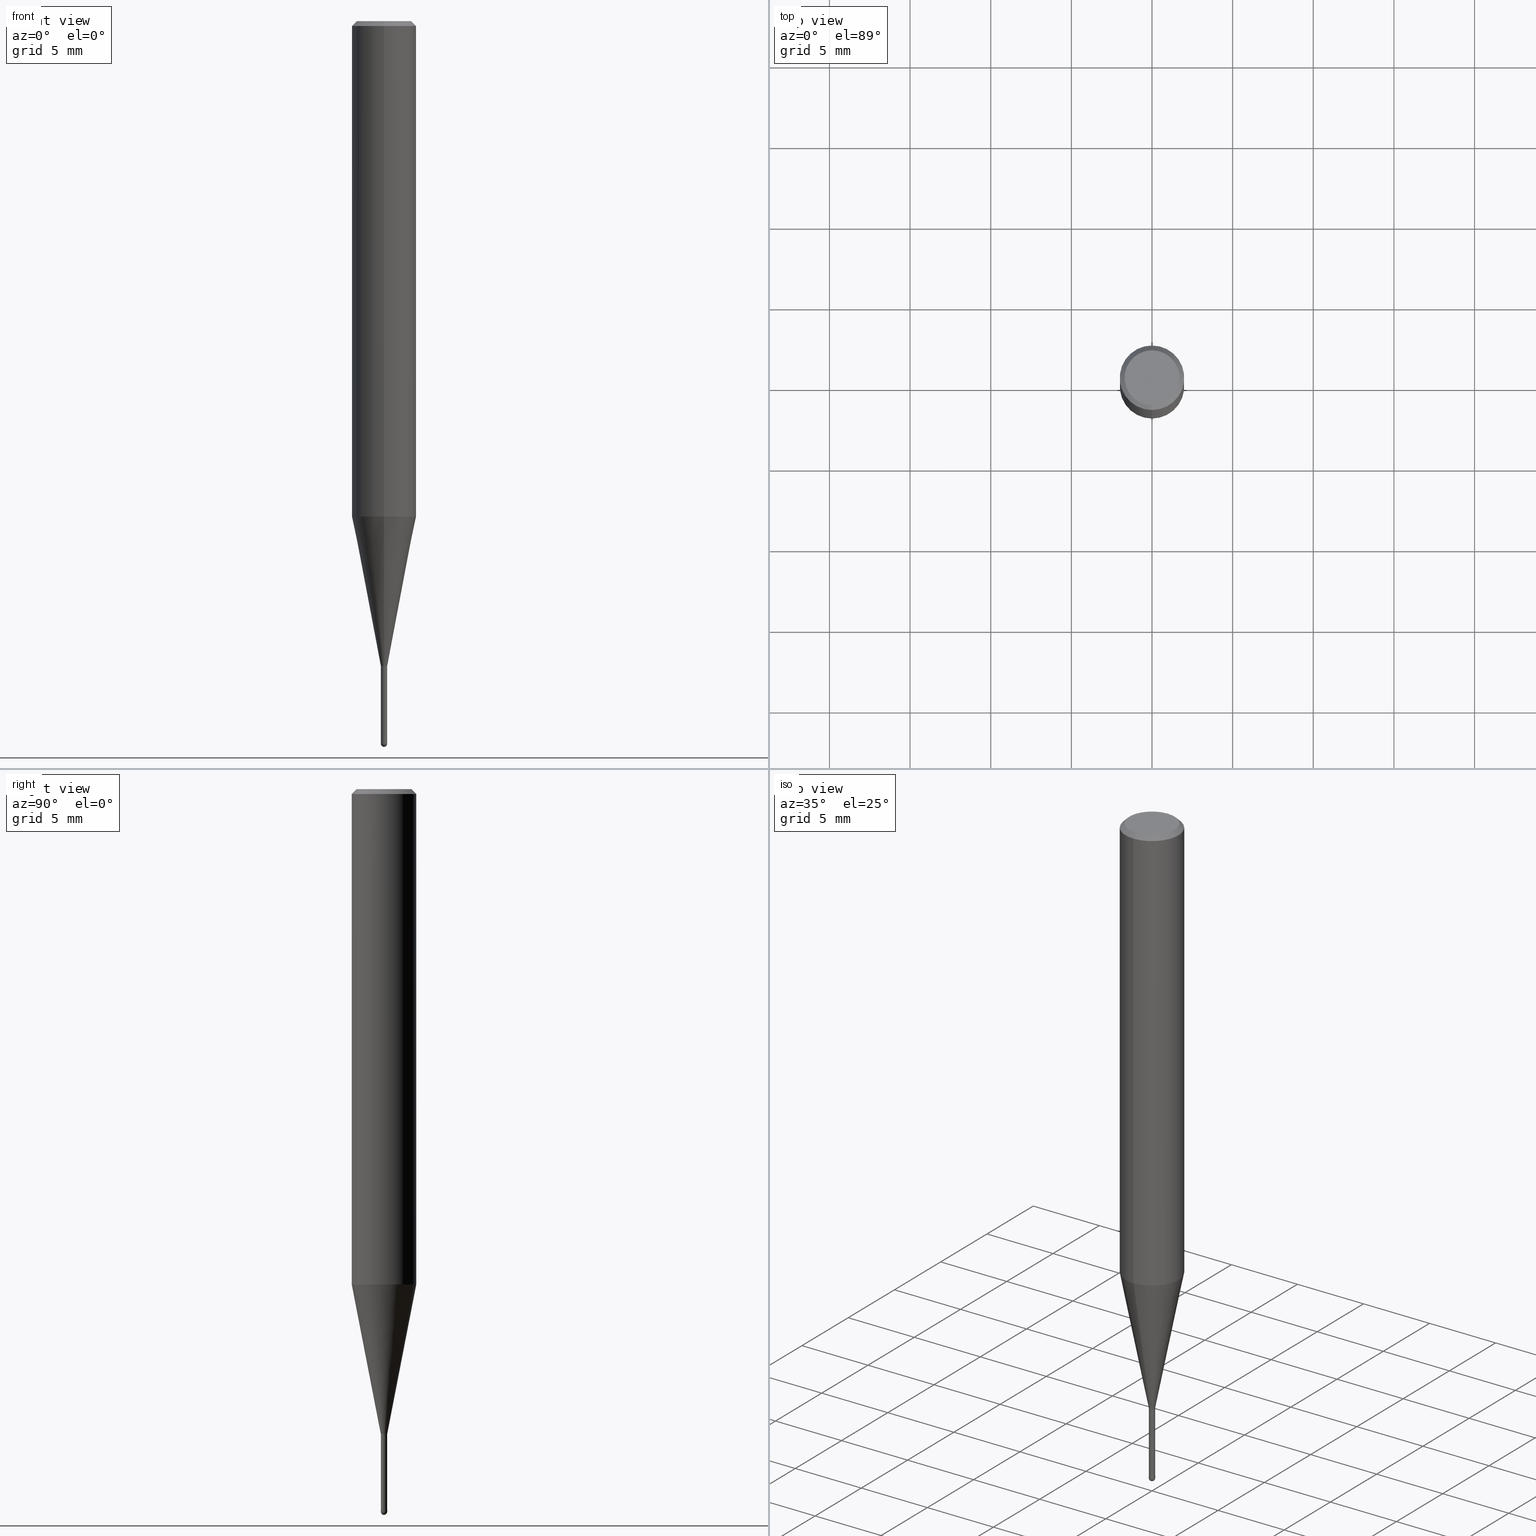
[diagram: canonical four-view strip — front | top / right | iso, engineering-drawing reading convention]
A machine part, canonical four-view strip (front | top / right | iso — engineering-drawing reading convention). The complete STEP part file that produces these views, byte-faithful:
ISO-10303-21;
HEADER;
FILE_DESCRIPTION(('no description'),'unknown implementation level');
FILE_NAME('CSELB2004-050-Huellk.stp','  ',('CIMSOURCE GmbH'),('CADClick - KiM GmbH - www.kimweb.de'),'unknown preprocess','ACIS','unknown authorization');
FILE_SCHEMA(('automotive_design'));
ENDSEC;
DATA;
#1=MECHANICAL_DESIGN_GEOMETRIC_PRESENTATION_REPRESENTATION(' ',(#14,#15,#16,#17,#18,#19,#20,#21,#22,#23,#24,#25,#26,#27,#28,#29,#30,#31,#32,#33,#34,#35,#36,#37,#38,#39,#40,#41,#42,#43,#44,#45,#46,#47,#48,#49,#50,#51,#52,#53,#54,#55,#56,#57,#58,#59,#60,#61,#62,#63,#64,#65,#66,#67,#68,#69,#70,#71,#72,#73,#74),#10);
#2=PRODUCT_DEFINITION_CONTEXT('',#75,'design');
#3=APPLICATION_PROTOCOL_DEFINITION('INTERNATIONAL STANDARD','automotive_design',1994,#75);
#4=PRODUCT_CATEGORY_RELATIONSHIP('NONE','NONE',#76,#77);
#5=SHAPE_DEFINITION_REPRESENTATION(#78,#79);
#6=PRODUCT_DEFINITION_CONTEXT('',#80,'design');
#7=APPLICATION_PROTOCOL_DEFINITION('INTERNATIONAL STANDARD','automotive_design',1994,#80);
#8=PRODUCT_CATEGORY_RELATIONSHIP('NONE','NONE',#81,#82);
#9=SHAPE_DEFINITION_REPRESENTATION(#83,#84);
#10= (GEOMETRIC_REPRESENTATION_CONTEXT(3)GLOBAL_UNCERTAINTY_ASSIGNED_CONTEXT((#87))GLOBAL_UNIT_ASSIGNED_CONTEXT((#89,#90,#91))REPRESENTATION_CONTEXT('NONE','WORKSPACE'));
#14=STYLED_ITEM('',(#93),#94);
#15=STYLED_ITEM('',(#95),#96);
#16=STYLED_ITEM('',(#97),#98);
#17=STYLED_ITEM('',(#99),#100);
#18=STYLED_ITEM('',(#101),#102);
#19=STYLED_ITEM('',(#103),#104);
#20=STYLED_ITEM('',(#105),#106);
#21=STYLED_ITEM('',(#107),#108);
#22=STYLED_ITEM('',(#109),#110);
#23=STYLED_ITEM('',(#111),#112);
#24=STYLED_ITEM('',(#113),#114);
#25=STYLED_ITEM('',(#115),#116);
#26=STYLED_ITEM('',(#117),#118);
#27=STYLED_ITEM('',(#119),#120);
#28=STYLED_ITEM('',(#121),#122);
#29=STYLED_ITEM('',(#123),#124);
#30=STYLED_ITEM('',(#125),#126);
#31=STYLED_ITEM('',(#127),#128);
#32=STYLED_ITEM('',(#129),#130);
#33=STYLED_ITEM('',(#131),#132);
#34=STYLED_ITEM('',(#133),#134);
#35=STYLED_ITEM('',(#135),#136);
#36=STYLED_ITEM('',(#137),#138);
#37=STYLED_ITEM('',(#139),#140);
#38=STYLED_ITEM('',(#141),#142);
#39=STYLED_ITEM('',(#143),#144);
#40=STYLED_ITEM('',(#145),#146);
#41=STYLED_ITEM('',(#147),#148);
#42=STYLED_ITEM('',(#149),#150);
#43=STYLED_ITEM('',(#151),#152);
#44=STYLED_ITEM('',(#153),#154);
#45=STYLED_ITEM('',(#155),#156);
#46=STYLED_ITEM('',(#157),#158);
#47=STYLED_ITEM('',(#159),#160);
#48=STYLED_ITEM('',(#161),#162);
#49=STYLED_ITEM('',(#163),#164);
#50=STYLED_ITEM('',(#165),#166);
#51=STYLED_ITEM('',(#167),#168);
#52=STYLED_ITEM('',(#169),#170);
#53=STYLED_ITEM('',(#171),#172);
#54=STYLED_ITEM('',(#173),#174);
#55=STYLED_ITEM('',(#175),#176);
#56=STYLED_ITEM('',(#177),#178);
#57=STYLED_ITEM('',(#179),#180);
#58=STYLED_ITEM('',(#181),#182);
#59=STYLED_ITEM('',(#183),#184);
#60=STYLED_ITEM('',(#185),#186);
#61=STYLED_ITEM('',(#187),#188);
#62=STYLED_ITEM('',(#189),#190);
#63=STYLED_ITEM('',(#191),#192);
#64=STYLED_ITEM('',(#193),#194);
#65=STYLED_ITEM('',(#195),#196);
#66=STYLED_ITEM('',(#197),#198);
#67=STYLED_ITEM('',(#199),#200);
#68=STYLED_ITEM('',(#201),#202);
#69=STYLED_ITEM('',(#203),#204);
#70=STYLED_ITEM('',(#205),#206);
#71=STYLED_ITEM('',(#207),#208);
#72=STYLED_ITEM('',(#209),#210);
#73=STYLED_ITEM('',(#211),#212);
#74=STYLED_ITEM('',(#213),#214);
#75=APPLICATION_CONTEXT(' ');
#76=PRODUCT_CATEGORY('part','NONE');
#77=PRODUCT_RELATED_PRODUCT_CATEGORY('detail',' ',(#215));
#78=PRODUCT_DEFINITION_SHAPE('NONE','NONE',#216);
#79=ADVANCED_BREP_SHAPE_REPRESENTATION('1',(#134,#217),#10);
#80=APPLICATION_CONTEXT(' ');
#81=PRODUCT_CATEGORY('part','NONE');
#82=PRODUCT_RELATED_PRODUCT_CATEGORY('detail',' ',(#218));
#83=PRODUCT_DEFINITION_SHAPE('NONE','NONE',#219);
#84=ADVANCED_BREP_SHAPE_REPRESENTATION('2',(#158,#220),#10);
#87=UNCERTAINTY_MEASURE_WITH_UNIT(LENGTH_MEASURE(1.0E-006),#89,'','');
#89= (CONVERSION_BASED_UNIT('MILLIMETRE',#223)LENGTH_UNIT()NAMED_UNIT(#226));
#90= (NAMED_UNIT(#228)PLANE_ANGLE_UNIT()SI_UNIT($,.RADIAN.));
#91= (NAMED_UNIT(#228)SOLID_ANGLE_UNIT()SI_UNIT($,.STERADIAN.));
#93=PRESENTATION_STYLE_ASSIGNMENT((#234));
#94=EDGE_CURVE('',#200,#102,#235,.T.);
#95=PRESENTATION_STYLE_ASSIGNMENT((#236));
#96=VERTEX_POINT('',#237);
#97=PRESENTATION_STYLE_ASSIGNMENT((#238));
#98=EDGE_CURVE('',#164,#138,#239,.T.);
#99=PRESENTATION_STYLE_ASSIGNMENT((#240));
#100=VERTEX_POINT('',#241);
#101=PRESENTATION_STYLE_ASSIGNMENT((#242));
#102=VERTEX_POINT('',#243);
#103=PRESENTATION_STYLE_ASSIGNMENT((#244));
#104=VERTEX_POINT('',#245);
#105=PRESENTATION_STYLE_ASSIGNMENT((#246));
#106=VERTEX_POINT('',#247);
#107=PRESENTATION_STYLE_ASSIGNMENT((#248));
#108=ADVANCED_FACE('',(#249),#250,.T.);
#109=PRESENTATION_STYLE_ASSIGNMENT((#251));
#110=VERTEX_POINT('',#252);
#111=PRESENTATION_STYLE_ASSIGNMENT((#253));
#112=VERTEX_POINT('',#254);
#113=PRESENTATION_STYLE_ASSIGNMENT((#255));
#114=EDGE_CURVE('',#138,#164,#256,.T.);
#115=PRESENTATION_STYLE_ASSIGNMENT((#257));
#116=EDGE_CURVE('',#182,#96,#258,.T.);
#117=PRESENTATION_STYLE_ASSIGNMENT((#259));
#118=ADVANCED_FACE('',(#260),#261,.T.);
#119=PRESENTATION_STYLE_ASSIGNMENT((#262));
#120=ADVANCED_FACE('',(#263),#264,.T.);
#121=PRESENTATION_STYLE_ASSIGNMENT((#265));
#122=EDGE_CURVE('',#96,#138,#266,.T.);
#123=PRESENTATION_STYLE_ASSIGNMENT((#267));
#124=ADVANCED_FACE('',(#268),#269,.T.);
#125=PRESENTATION_STYLE_ASSIGNMENT((#270));
#126=EDGE_CURVE('',#162,#110,#271,.T.);
#127=PRESENTATION_STYLE_ASSIGNMENT((#272));
#128=EDGE_CURVE('',#200,#174,#273,.T.);
#129=PRESENTATION_STYLE_ASSIGNMENT((#274));
#130=EDGE_CURVE('',#152,#174,#275,.T.);
#131=PRESENTATION_STYLE_ASSIGNMENT((#276));
#132=EDGE_CURVE('',#110,#104,#277,.T.);
#133=PRESENTATION_STYLE_ASSIGNMENT((#278));
#134=MANIFOLD_SOLID_BREP('1',#279);
#135=PRESENTATION_STYLE_ASSIGNMENT((#280));
#136=EDGE_CURVE('',#164,#182,#281,.T.);
#137=PRESENTATION_STYLE_ASSIGNMENT((#282));
#138=VERTEX_POINT('',#283);
#139=PRESENTATION_STYLE_ASSIGNMENT((#284));
#140=ADVANCED_FACE('',(#285),#286,.T.);
#141=PRESENTATION_STYLE_ASSIGNMENT((#287));
#142=ADVANCED_FACE('',(#288),#289,.T.);
#143=PRESENTATION_STYLE_ASSIGNMENT((#290));
#144=EDGE_CURVE('',#106,#100,#291,.T.);
#145=PRESENTATION_STYLE_ASSIGNMENT((#292));
#146=ADVANCED_FACE('',(#293),#294,.T.);
#147=PRESENTATION_STYLE_ASSIGNMENT((#295));
#148=EDGE_CURVE('',#112,#104,#296,.T.);
#149=PRESENTATION_STYLE_ASSIGNMENT((#297));
#150=EDGE_CURVE('',#164,#138,#298,.T.);
#151=PRESENTATION_STYLE_ASSIGNMENT((#299));
#152=VERTEX_POINT('',#300);
#153=PRESENTATION_STYLE_ASSIGNMENT((#301));
#154=EDGE_CURVE('',#174,#188,#302,.T.);
#155=PRESENTATION_STYLE_ASSIGNMENT((#303));
#156=EDGE_CURVE('',#106,#110,#304,.T.);
#157=PRESENTATION_STYLE_ASSIGNMENT((#305));
#158=MANIFOLD_SOLID_BREP('2',#306);
#159=PRESENTATION_STYLE_ASSIGNMENT((#307));
#160=EDGE_CURVE('',#112,#162,#308,.T.);
#161=PRESENTATION_STYLE_ASSIGNMENT((#309));
#162=VERTEX_POINT('',#310);
#163=PRESENTATION_STYLE_ASSIGNMENT((#311));
#164=VERTEX_POINT('',#312);
#165=PRESENTATION_STYLE_ASSIGNMENT((#313));
#166=ADVANCED_FACE('',(#314),#315,.T.);
#167=PRESENTATION_STYLE_ASSIGNMENT((#316));
#168=EDGE_CURVE('',#174,#200,#317,.T.);
#169=PRESENTATION_STYLE_ASSIGNMENT((#318));
#170=EDGE_CURVE('',#194,#200,#319,.T.);
#171=PRESENTATION_STYLE_ASSIGNMENT((#320));
#172=ADVANCED_FACE('',(#321),#322,.T.);
#173=PRESENTATION_STYLE_ASSIGNMENT((#323));
#174=VERTEX_POINT('',#324);
#175=PRESENTATION_STYLE_ASSIGNMENT((#325));
#176=EDGE_CURVE('',#162,#100,#326,.T.);
#177=PRESENTATION_STYLE_ASSIGNMENT((#327));
#178=ADVANCED_FACE('',(#328),#329,.T.);
#179=PRESENTATION_STYLE_ASSIGNMENT((#330));
#180=ADVANCED_FACE('',(#331),#332,.T.);
#181=PRESENTATION_STYLE_ASSIGNMENT((#333));
#182=VERTEX_POINT('',#334);
#183=PRESENTATION_STYLE_ASSIGNMENT((#335));
#184=ADVANCED_FACE('',(#336),#337,.T.);
#185=PRESENTATION_STYLE_ASSIGNMENT((#338));
#186=EDGE_CURVE('',#102,#152,#339,.T.);
#187=PRESENTATION_STYLE_ASSIGNMENT((#340));
#188=VERTEX_POINT('',#341);
#189=PRESENTATION_STYLE_ASSIGNMENT((#342));
#190=EDGE_CURVE('',#100,#106,#343,.T.);
#191=PRESENTATION_STYLE_ASSIGNMENT((#344));
#192=ADVANCED_FACE('',(#345),#346,.T.);
#193=PRESENTATION_STYLE_ASSIGNMENT((#347));
#194=VERTEX_POINT('',#348);
#195=PRESENTATION_STYLE_ASSIGNMENT((#349));
#196=EDGE_CURVE('',#104,#112,#350,.T.);
#197=PRESENTATION_STYLE_ASSIGNMENT((#351));
#198=ADVANCED_FACE('',(#352),#353,.T.);
#199=PRESENTATION_STYLE_ASSIGNMENT((#354));
#200=VERTEX_POINT('',#355);
#201=PRESENTATION_STYLE_ASSIGNMENT((#356));
#202=EDGE_CURVE('',#152,#102,#357,.T.);
#203=PRESENTATION_STYLE_ASSIGNMENT((#358));
#204=ADVANCED_FACE('',(#359,#360),#361,.T.);
#205=PRESENTATION_STYLE_ASSIGNMENT((#362));
#206=EDGE_CURVE('',#110,#162,#363,.T.);
#207=PRESENTATION_STYLE_ASSIGNMENT((#364));
#208=EDGE_CURVE('',#194,#188,#365,.T.);
#209=PRESENTATION_STYLE_ASSIGNMENT((#366));
#210=EDGE_CURVE('',#96,#182,#367,.T.);
#211=PRESENTATION_STYLE_ASSIGNMENT((#368));
#212=EDGE_CURVE('',#188,#194,#369,.T.);
#213=PRESENTATION_STYLE_ASSIGNMENT((#370));
#214=ADVANCED_FACE('',(#371),#372,.T.);
#215=PRODUCT('1','1','PART-1-DESC',(#373));
#216=PRODUCT_DEFINITION('NONE','NONE',#374,#2);
#217=AXIS2_PLACEMENT_3D('',#375,#376,#377);
#218=PRODUCT('2','2','PART-2-DESC',(#378));
#219=PRODUCT_DEFINITION('NONE','NONE',#379,#6);
#220=AXIS2_PLACEMENT_3D('',#380,#381,#382);
#223=LENGTH_MEASURE_WITH_UNIT(LENGTH_MEASURE(1.0),#383);
#226=DIMENSIONAL_EXPONENTS(1.0,0.0,0.0,0.0,0.0,0.0,0.0);
#228=DIMENSIONAL_EXPONENTS(0.0,0.0,0.0,0.0,0.0,0.0,0.0);
#234=CURVE_STYLE('',#384,POSITIVE_LENGTH_MEASURE(1.0E-006),#385);
#235=LINE('',#386,#387);
#236=POINT_STYLE(' ',#388,POSITIVE_LENGTH_MEASURE(1.0E-006),#389);
#237=CARTESIAN_POINT('',(0.0,0.1999,-44.68));
#238=CURVE_STYLE('',#390,POSITIVE_LENGTH_MEASURE(1.0E-006),#391);
#239=CIRCLE('',#392,0.2);
#240=POINT_STYLE(' ',#393,POSITIVE_LENGTH_MEASURE(1.0E-006),#394);
#241=CARTESIAN_POINT('',(2.08183080149804E-016,-1.7,0.0));
#242=POINT_STYLE(' ',#395,POSITIVE_LENGTH_MEASURE(1.0E-006),#396);
#243=CARTESIAN_POINT('',(0.0,0.19495,-44.68));
#244=POINT_STYLE(' ',#397,POSITIVE_LENGTH_MEASURE(1.0E-006),#398);
#245=CARTESIAN_POINT('',(0.0,2.0,-30.714));
#246=POINT_STYLE(' ',#399,POSITIVE_LENGTH_MEASURE(1.0E-006),#400);
#247=CARTESIAN_POINT('',(0.0,1.7,0.0));
#248=SURFACE_STYLE_USAGE(.BOTH.,#401);
#249=FACE_OUTER_BOUND('',#402,.T.);
#250=CONICAL_SURFACE('',#403,0.19995,0.000833333140432319);
#251=POINT_STYLE(' ',#404,POSITIVE_LENGTH_MEASURE(1.0E-006),#405);
#252=CARTESIAN_POINT('',(0.0,2.0,-0.300000000000001));
#253=POINT_STYLE(' ',#406,POSITIVE_LENGTH_MEASURE(1.0E-006),#407);
#254=CARTESIAN_POINT('',(2.44921270764475E-016,-2.0,-30.714));
#255=CURVE_STYLE('',#408,POSITIVE_LENGTH_MEASURE(1.0E-006),#409);
#256=CIRCLE('',#410,0.2);
#257=CURVE_STYLE('',#411,POSITIVE_LENGTH_MEASURE(1.0E-006),#412);
#258=CIRCLE('',#413,0.1999);
#259=SURFACE_STYLE_USAGE(.BOTH.,#414);
#260=FACE_OUTER_BOUND('',#415,.T.);
#261=CYLINDRICAL_SURFACE('',#416,2.0);
#262=SURFACE_STYLE_USAGE(.BOTH.,#417);
#263=FACE_OUTER_BOUND('',#418,.T.);
#264=SPHERICAL_SURFACE('',#419,0.2);
#265=CURVE_STYLE('',#420,POSITIVE_LENGTH_MEASURE(1.0E-006),#421);
#266=LINE('',#422,#423);
#267=SURFACE_STYLE_USAGE(.BOTH.,#424);
#268=FACE_OUTER_BOUND('',#425,.T.);
#269=CONICAL_SURFACE('',#426,0.19995,0.000833333140432319);
#270=CURVE_STYLE('',#427,POSITIVE_LENGTH_MEASURE(1.0E-006),#428);
#271=CIRCLE('',#429,2.0);
#272=CURVE_STYLE('',#430,POSITIVE_LENGTH_MEASURE(1.0E-006),#431);
#273=CIRCLE('',#432,0.19495);
#274=CURVE_STYLE('',#433,POSITIVE_LENGTH_MEASURE(1.0E-006),#434);
#275=LINE('',#435,#436);
#276=CURVE_STYLE('',#437,POSITIVE_LENGTH_MEASURE(1.0E-006),#438);
#277=LINE('',#439,#440);
#278=SURFACE_STYLE_USAGE(.BOTH.,#441);
#279=CLOSED_SHELL('',(#192,#178,#118,#142,#204,#172,#180,#146,#184,#166,#140));
#280=CURVE_STYLE('',#442,POSITIVE_LENGTH_MEASURE(1.0E-006),#443);
#281=LINE('',#444,#445);
#282=POINT_STYLE(' ',#446,POSITIVE_LENGTH_MEASURE(1.0E-006),#447);
#283=CARTESIAN_POINT('',(0.0,0.2,-44.8));
#284=SURFACE_STYLE_USAGE(.BOTH.,#448);
#285=FACE_OUTER_BOUND('',#449,.T.);
#286=PLANE('',#450);
#287=SURFACE_STYLE_USAGE(.BOTH.,#451);
#288=FACE_OUTER_BOUND('',#452,.T.);
#289=CONICAL_SURFACE('',#453,1.85,0.785398163397447);
#290=CURVE_STYLE('',#454,POSITIVE_LENGTH_MEASURE(1.0E-006),#455);
#291=CIRCLE('',#456,1.7);
#292=SURFACE_STYLE_USAGE(.BOTH.,#457);
#293=FACE_OUTER_BOUND('',#458,.T.);
#294=CYLINDRICAL_SURFACE('',#459,2.0);
#295=CURVE_STYLE('',#460,POSITIVE_LENGTH_MEASURE(1.0E-006),#461);
#296=CIRCLE('',#462,2.0);
#297=CURVE_STYLE('',#463,POSITIVE_LENGTH_MEASURE(1.0E-006),#464);
#298=CIRCLE('',#465,0.2);
#299=POINT_STYLE(' ',#466,POSITIVE_LENGTH_MEASURE(1.0E-006),#467);
#300=CARTESIAN_POINT('',(2.38737008677672E-017,-0.19495,-44.68));
#301=CURVE_STYLE('',#468,POSITIVE_LENGTH_MEASURE(1.0E-006),#469);
#302=LINE('',#470,#471);
#303=CURVE_STYLE('',#472,POSITIVE_LENGTH_MEASURE(1.0E-006),#473);
#304=LINE('',#474,#475);
#305=SURFACE_STYLE_USAGE(.BOTH.,#476);
#306=CLOSED_SHELL('',(#120,#108,#214,#124,#198));
#307=CURVE_STYLE('',#477,POSITIVE_LENGTH_MEASURE(1.0E-006),#478);
#308=LINE('',#479,#480);
#309=POINT_STYLE(' ',#481,POSITIVE_LENGTH_MEASURE(1.0E-006),#482);
#310=CARTESIAN_POINT('',(2.44921270764475E-016,-2.0,-0.300000000000001));
#311=POINT_STYLE(' ',#483,POSITIVE_LENGTH_MEASURE(1.0E-006),#484);
#312=CARTESIAN_POINT('',(2.44921270764475E-017,-0.2,-44.8));
#313=SURFACE_STYLE_USAGE(.BOTH.,#485);
#314=FACE_OUTER_BOUND('',#486,.T.);
#315=CYLINDRICAL_SURFACE('',#487,0.19495);
#316=CURVE_STYLE('',#488,POSITIVE_LENGTH_MEASURE(1.0E-006),#489);
#317=CIRCLE('',#490,0.19495);
#318=CURVE_STYLE('',#491,POSITIVE_LENGTH_MEASURE(1.0E-006),#492);
#319=LINE('',#493,#494);
#320=SURFACE_STYLE_USAGE(.BOTH.,#495);
#321=FACE_OUTER_BOUND('',#496,.T.);
#322=PLANE('',#497);
#323=POINT_STYLE(' ',#498,POSITIVE_LENGTH_MEASURE(1.0E-006),#499);
#324=CARTESIAN_POINT('',(2.38737008677672E-017,-0.19495,-40.0));
#325=CURVE_STYLE('',#500,POSITIVE_LENGTH_MEASURE(1.0E-006),#501);
#326=LINE('',#502,#503);
#327=SURFACE_STYLE_USAGE(.BOTH.,#504);
#328=FACE_OUTER_BOUND('',#505,.T.);
#329=CONICAL_SURFACE('',#506,1.09745,0.191984604054908);
#330=SURFACE_STYLE_USAGE(.BOTH.,#507);
#331=FACE_OUTER_BOUND('',#508,.T.);
#332=CONICAL_SURFACE('',#509,1.85,0.785398163397447);
#333=POINT_STYLE(' ',#510,POSITIVE_LENGTH_MEASURE(1.0E-006),#511);
#334=CARTESIAN_POINT('',(2.44798810129093E-017,-0.1999,-44.68));
#335=SURFACE_STYLE_USAGE(.BOTH.,#512);
#336=FACE_OUTER_BOUND('',#513,.T.);
#337=CONICAL_SURFACE('',#514,1.09745,0.191984604054908);
#338=CURVE_STYLE('',#515,POSITIVE_LENGTH_MEASURE(1.0E-006),#516);
#339=CIRCLE('',#517,0.19495);
#340=POINT_STYLE(' ',#518,POSITIVE_LENGTH_MEASURE(1.0E-006),#519);
#341=CARTESIAN_POINT('',(2.44915147732706E-016,-1.99995,-30.714));
#342=CURVE_STYLE('',#520,POSITIVE_LENGTH_MEASURE(1.0E-006),#521);
#343=CIRCLE('',#522,1.7);
#344=SURFACE_STYLE_USAGE(.BOTH.,#523);
#345=FACE_OUTER_BOUND('',#524,.T.);
#346=CYLINDRICAL_SURFACE('',#525,0.19495);
#347=POINT_STYLE(' ',#526,POSITIVE_LENGTH_MEASURE(1.0E-006),#527);
#348=CARTESIAN_POINT('',(0.0,1.99995,-30.714));
#349=CURVE_STYLE('',#528,POSITIVE_LENGTH_MEASURE(1.0E-006),#529);
#350=CIRCLE('',#530,2.0);
#351=SURFACE_STYLE_USAGE(.BOTH.,#531);
#352=FACE_OUTER_BOUND('',#532,.T.);
#353=SPHERICAL_SURFACE('',#533,0.2);
#354=POINT_STYLE(' ',#534,POSITIVE_LENGTH_MEASURE(1.0E-006),#535);
#355=CARTESIAN_POINT('',(0.0,0.19495,-40.0));
#356=CURVE_STYLE('',#536,POSITIVE_LENGTH_MEASURE(1.0E-006),#537);
#357=CIRCLE('',#538,0.19495);
#358=SURFACE_STYLE_USAGE(.BOTH.,#539);
#359=FACE_OUTER_BOUND('',#540,.T.);
#360=FACE_BOUND('',#541,.T.);
#361=PLANE('',#542);
#362=CURVE_STYLE('',#543,POSITIVE_LENGTH_MEASURE(1.0E-006),#544);
#363=CIRCLE('',#545,2.0);
#364=CURVE_STYLE('',#546,POSITIVE_LENGTH_MEASURE(1.0E-006),#547);
#365=CIRCLE('',#548,1.99995);
#366=CURVE_STYLE('',#549,POSITIVE_LENGTH_MEASURE(1.0E-006),#550);
#367=CIRCLE('',#551,0.1999);
#368=CURVE_STYLE('',#552,POSITIVE_LENGTH_MEASURE(1.0E-006),#553);
#369=CIRCLE('',#554,1.99995);
#370=SURFACE_STYLE_USAGE(.BOTH.,#555);
#371=FACE_OUTER_BOUND('',#556,.T.);
#372=PLANE('',#557);
#373=PRODUCT_CONTEXT('',#75,'mechanical');
#374=PRODUCT_DEFINITION_FORMATION_WITH_SPECIFIED_SOURCE(' ','NONE',#215,.NOT_KNOWN.);
#375=CARTESIAN_POINT('',(0.0,0.0,0.0));
#376=DIRECTION('',(0.0,0.0,1.0));
#377=DIRECTION('',(1.0,0.0,0.0));
#378=PRODUCT_CONTEXT('',#80,'mechanical');
#379=PRODUCT_DEFINITION_FORMATION_WITH_SPECIFIED_SOURCE(' ','NONE',#218,.NOT_KNOWN.);
#380=CARTESIAN_POINT('',(0.0,0.0,0.0));
#381=DIRECTION('',(0.0,0.0,1.0));
#382=DIRECTION('',(1.0,0.0,0.0));
#383= (NAMED_UNIT(#226)LENGTH_UNIT()SI_UNIT(.MILLI.,.METRE.));
#384=DRAUGHTING_PRE_DEFINED_CURVE_FONT('continuous');
#385=COLOUR_RGB('',0.498039215803146,0.498039215803146,0.498039215803146);
#386=CARTESIAN_POINT('',(-2.38737008677672E-017,0.19495,-42.34));
#387=VECTOR('',#559,1.0);
#388=PRE_DEFINED_MARKER('');
#389=COLOUR_RGB('',0.800000011920929,0.800000011920929,0.800000011920929);
#390=DRAUGHTING_PRE_DEFINED_CURVE_FONT('continuous');
#391=COLOUR_RGB('',0.800000011920929,0.800000011920929,0.800000011920929);
#392=AXIS2_PLACEMENT_3D('',#560,#561,#562);
#393=PRE_DEFINED_MARKER('');
#394=COLOUR_RGB('',0.498039215803146,0.498039215803146,0.498039215803146);
#395=PRE_DEFINED_MARKER('');
#396=COLOUR_RGB('',0.498039215803146,0.498039215803146,0.498039215803146);
#397=PRE_DEFINED_MARKER('');
#398=COLOUR_RGB('',0.498039215803146,0.498039215803146,0.498039215803146);
#399=PRE_DEFINED_MARKER('');
#400=COLOUR_RGB('',0.498039215803146,0.498039215803146,0.498039215803146);
#401=SURFACE_SIDE_STYLE('',(#563));
#402=EDGE_LOOP('',(#564,#565,#566,#567));
#403=AXIS2_PLACEMENT_3D('',#568,#569,#570);
#404=PRE_DEFINED_MARKER('');
#405=COLOUR_RGB('',0.498039215803146,0.498039215803146,0.498039215803146);
#406=PRE_DEFINED_MARKER('');
#407=COLOUR_RGB('',0.498039215803146,0.498039215803146,0.498039215803146);
#408=DRAUGHTING_PRE_DEFINED_CURVE_FONT('continuous');
#409=COLOUR_RGB('',0.800000011920929,0.800000011920929,0.800000011920929);
#410=AXIS2_PLACEMENT_3D('',#571,#572,#573);
#411=DRAUGHTING_PRE_DEFINED_CURVE_FONT('continuous');
#412=COLOUR_RGB('',0.800000011920929,0.800000011920929,0.800000011920929);
#413=AXIS2_PLACEMENT_3D('',#574,#575,#576);
#414=SURFACE_SIDE_STYLE('',(#577));
#415=EDGE_LOOP('',(#578,#579,#580,#581));
#416=AXIS2_PLACEMENT_3D('',#582,#583,#584);
#417=SURFACE_SIDE_STYLE('',(#585));
#418=EDGE_LOOP('',(#586,#587));
#419=AXIS2_PLACEMENT_3D('',#588,#589,#590);
#420=DRAUGHTING_PRE_DEFINED_CURVE_FONT('continuous');
#421=COLOUR_RGB('',0.800000011920929,0.800000011920929,0.800000011920929);
#422=CARTESIAN_POINT('',(-2.44860040446784E-017,0.19995,-44.74));
#423=VECTOR('',#591,1.0);
#424=SURFACE_SIDE_STYLE('',(#592));
#425=EDGE_LOOP('',(#593,#594,#595,#596));
#426=AXIS2_PLACEMENT_3D('',#597,#598,#599);
#427=DRAUGHTING_PRE_DEFINED_CURVE_FONT('continuous');
#428=COLOUR_RGB('',0.498039215803146,0.498039215803146,0.498039215803146);
#429=AXIS2_PLACEMENT_3D('',#600,#601,#602);
#430=DRAUGHTING_PRE_DEFINED_CURVE_FONT('continuous');
#431=COLOUR_RGB('',0.498039215803146,0.498039215803146,0.498039215803146);
#432=AXIS2_PLACEMENT_3D('',#603,#604,#605);
#433=DRAUGHTING_PRE_DEFINED_CURVE_FONT('continuous');
#434=COLOUR_RGB('',0.498039215803146,0.498039215803146,0.498039215803146);
#435=CARTESIAN_POINT('',(2.38737008677672E-017,-0.19495,-42.34));
#436=VECTOR('',#606,1.0);
#437=DRAUGHTING_PRE_DEFINED_CURVE_FONT('continuous');
#438=COLOUR_RGB('',0.498039215803146,0.498039215803146,0.498039215803146);
#439=CARTESIAN_POINT('',(-2.44921270764475E-016,2.0,-15.507));
#440=VECTOR('',#607,1.0);
#441=SURFACE_SIDE_STYLE('',(#608));
#442=DRAUGHTING_PRE_DEFINED_CURVE_FONT('continuous');
#443=COLOUR_RGB('',0.800000011920929,0.800000011920929,0.800000011920929);
#444=CARTESIAN_POINT('',(2.44860040446784E-017,-0.19995,-44.74));
#445=VECTOR('',#609,1.0);
#446=PRE_DEFINED_MARKER('');
#447=COLOUR_RGB('',0.800000011920929,0.800000011920929,0.800000011920929);
#448=SURFACE_SIDE_STYLE('',(#610));
#449=EDGE_LOOP('',(#611,#612));
#450=AXIS2_PLACEMENT_3D('',#613,#614,#615);
#451=SURFACE_SIDE_STYLE('',(#616));
#452=EDGE_LOOP('',(#617,#618,#619,#620));
#453=AXIS2_PLACEMENT_3D('',#621,#622,#623);
#454=DRAUGHTING_PRE_DEFINED_CURVE_FONT('continuous');
#455=COLOUR_RGB('',0.498039215803146,0.498039215803146,0.498039215803146);
#456=AXIS2_PLACEMENT_3D('',#624,#625,#626);
#457=SURFACE_SIDE_STYLE('',(#627));
#458=EDGE_LOOP('',(#628,#629,#630,#631));
#459=AXIS2_PLACEMENT_3D('',#632,#633,#634);
#460=DRAUGHTING_PRE_DEFINED_CURVE_FONT('continuous');
#461=COLOUR_RGB('',0.498039215803146,0.498039215803146,0.498039215803146);
#462=AXIS2_PLACEMENT_3D('',#635,#636,#637);
#463=DRAUGHTING_PRE_DEFINED_CURVE_FONT('continuous');
#464=COLOUR_RGB('',0.800000011920929,0.800000011920929,0.800000011920929);
#465=AXIS2_PLACEMENT_3D('',#638,#639,#640);
#466=PRE_DEFINED_MARKER('');
#467=COLOUR_RGB('',0.498039215803146,0.498039215803146,0.498039215803146);
#468=DRAUGHTING_PRE_DEFINED_CURVE_FONT('continuous');
#469=COLOUR_RGB('',0.498039215803146,0.498039215803146,0.498039215803146);
#470=CARTESIAN_POINT('',(1.34394424300237E-016,-1.09745,-35.357));
#471=VECTOR('',#641,1.0);
#472=DRAUGHTING_PRE_DEFINED_CURVE_FONT('continuous');
#473=COLOUR_RGB('',0.498039215803146,0.498039215803146,0.498039215803146);
#474=CARTESIAN_POINT('',(-2.2655217545714E-016,1.85,-0.149999999999999));
#475=VECTOR('',#642,1.0);
#476=SURFACE_SIDE_STYLE('',(#643));
#477=DRAUGHTING_PRE_DEFINED_CURVE_FONT('continuous');
#478=COLOUR_RGB('',0.498039215803146,0.498039215803146,0.498039215803146);
#479=CARTESIAN_POINT('',(2.44921270764475E-016,-2.0,-15.507));
#480=VECTOR('',#644,1.0);
#481=PRE_DEFINED_MARKER('');
#482=COLOUR_RGB('',0.498039215803146,0.498039215803146,0.498039215803146);
#483=PRE_DEFINED_MARKER('');
#484=COLOUR_RGB('',0.800000011920929,0.800000011920929,0.800000011920929);
#485=SURFACE_SIDE_STYLE('',(#645));
#486=EDGE_LOOP('',(#646,#647,#648,#649));
#487=AXIS2_PLACEMENT_3D('',#650,#651,#652);
#488=DRAUGHTING_PRE_DEFINED_CURVE_FONT('continuous');
#489=COLOUR_RGB('',0.498039215803146,0.498039215803146,0.498039215803146);
#490=AXIS2_PLACEMENT_3D('',#653,#654,#655);
#491=DRAUGHTING_PRE_DEFINED_CURVE_FONT('continuous');
#492=COLOUR_RGB('',0.498039215803146,0.498039215803146,0.498039215803146);
#493=CARTESIAN_POINT('',(-1.34394424300237E-016,1.09745,-35.357));
#494=VECTOR('',#656,1.0);
#495=SURFACE_SIDE_STYLE('',(#657));
#496=EDGE_LOOP('',(#658,#659));
#497=AXIS2_PLACEMENT_3D('',#660,#661,#662);
#498=PRE_DEFINED_MARKER('');
#499=COLOUR_RGB('',0.498039215803146,0.498039215803146,0.498039215803146);
#500=DRAUGHTING_PRE_DEFINED_CURVE_FONT('continuous');
#501=COLOUR_RGB('',0.498039215803146,0.498039215803146,0.498039215803146);
#502=CARTESIAN_POINT('',(2.2655217545714E-016,-1.85,-0.149999999999999));
#503=VECTOR('',#663,1.0);
#504=SURFACE_SIDE_STYLE('',(#664));
#505=EDGE_LOOP('',(#665,#666,#667,#668));
#506=AXIS2_PLACEMENT_3D('',#669,#670,#671);
#507=SURFACE_SIDE_STYLE('',(#672));
#508=EDGE_LOOP('',(#673,#674,#675,#676));
#509=AXIS2_PLACEMENT_3D('',#677,#678,#679);
#510=PRE_DEFINED_MARKER('');
#511=COLOUR_RGB('',0.800000011920929,0.800000011920929,0.800000011920929);
#512=SURFACE_SIDE_STYLE('',(#680));
#513=EDGE_LOOP('',(#681,#682,#683,#684));
#514=AXIS2_PLACEMENT_3D('',#685,#686,#687);
#515=DRAUGHTING_PRE_DEFINED_CURVE_FONT('continuous');
#516=COLOUR_RGB('',0.498039215803146,0.498039215803146,0.498039215803146);
#517=AXIS2_PLACEMENT_3D('',#688,#689,#690);
#518=PRE_DEFINED_MARKER('');
#519=COLOUR_RGB('',0.498039215803146,0.498039215803146,0.498039215803146);
#520=DRAUGHTING_PRE_DEFINED_CURVE_FONT('continuous');
#521=COLOUR_RGB('',0.498039215803146,0.498039215803146,0.498039215803146);
#522=AXIS2_PLACEMENT_3D('',#691,#692,#693);
#523=SURFACE_SIDE_STYLE('',(#694));
#524=EDGE_LOOP('',(#695,#696,#697,#698));
#525=AXIS2_PLACEMENT_3D('',#699,#700,#701);
#526=PRE_DEFINED_MARKER('');
#527=COLOUR_RGB('',0.498039215803146,0.498039215803146,0.498039215803146);
#528=DRAUGHTING_PRE_DEFINED_CURVE_FONT('continuous');
#529=COLOUR_RGB('',0.498039215803146,0.498039215803146,0.498039215803146);
#530=AXIS2_PLACEMENT_3D('',#702,#703,#704);
#531=SURFACE_SIDE_STYLE('',(#705));
#532=EDGE_LOOP('',(#706,#707));
#533=AXIS2_PLACEMENT_3D('',#708,#709,#710);
#534=PRE_DEFINED_MARKER('');
#535=COLOUR_RGB('',0.498039215803146,0.498039215803146,0.498039215803146);
#536=DRAUGHTING_PRE_DEFINED_CURVE_FONT('continuous');
#537=COLOUR_RGB('',0.498039215803146,0.498039215803146,0.498039215803146);
#538=AXIS2_PLACEMENT_3D('',#711,#712,#713);
#539=SURFACE_SIDE_STYLE('',(#714));
#540=EDGE_LOOP('',(#715,#716));
#541=EDGE_LOOP('',(#717,#718));
#542=AXIS2_PLACEMENT_3D('',#719,#720,#721);
#543=DRAUGHTING_PRE_DEFINED_CURVE_FONT('continuous');
#544=COLOUR_RGB('',0.498039215803146,0.498039215803146,0.498039215803146);
#545=AXIS2_PLACEMENT_3D('',#722,#723,#724);
#546=DRAUGHTING_PRE_DEFINED_CURVE_FONT('continuous');
#547=COLOUR_RGB('',0.498039215803146,0.498039215803146,0.498039215803146);
#548=AXIS2_PLACEMENT_3D('',#725,#726,#727);
#549=DRAUGHTING_PRE_DEFINED_CURVE_FONT('continuous');
#550=COLOUR_RGB('',0.800000011920929,0.800000011920929,0.800000011920929);
#551=AXIS2_PLACEMENT_3D('',#728,#729,#730);
#552=DRAUGHTING_PRE_DEFINED_CURVE_FONT('continuous');
#553=COLOUR_RGB('',0.498039215803146,0.498039215803146,0.498039215803146);
#554=AXIS2_PLACEMENT_3D('',#731,#732,#733);
#555=SURFACE_SIDE_STYLE('',(#734));
#556=EDGE_LOOP('',(#735,#736));
#557=AXIS2_PLACEMENT_3D('',#737,#738,#739);
#559=DIRECTION('',(0.0,0.0,-1.0));
#560=CARTESIAN_POINT('',(0.0,0.0,-44.8));
#561=DIRECTION('',(1.0,0.0,1.22460635382236E-016));
#562=DIRECTION('',(-1.22460635382236E-016,0.0,1.0));
#563=SURFACE_STYLE_FILL_AREA(#740);
#564=ORIENTED_EDGE('',*,*,#122,.F.);
#565=ORIENTED_EDGE('',*,*,#210,.T.);
#566=ORIENTED_EDGE('',*,*,#136,.F.);
#567=ORIENTED_EDGE('',*,*,#114,.F.);
#568=CARTESIAN_POINT('',(0.0,0.0,-44.74));
#569=DIRECTION('',(0.0,-0.0,-1.0));
#570=DIRECTION('',(0.0,1.0,0.0));
#571=CARTESIAN_POINT('',(0.0,0.0,-44.8));
#572=DIRECTION('',(0.0,0.0,-1.0));
#573=DIRECTION('',(0.0,1.0,0.0));
#574=CARTESIAN_POINT('',(0.0,0.0,-44.68));
#575=DIRECTION('',(0.0,0.0,-1.0));
#576=DIRECTION('',(0.0,1.0,0.0));
#577=SURFACE_STYLE_FILL_AREA(#741);
#578=ORIENTED_EDGE('',*,*,#132,.F.);
#579=ORIENTED_EDGE('',*,*,#206,.T.);
#580=ORIENTED_EDGE('',*,*,#160,.F.);
#581=ORIENTED_EDGE('',*,*,#196,.F.);
#582=CARTESIAN_POINT('',(0.0,0.0,-15.507));
#583=DIRECTION('',(-0.0,-0.0,1.0));
#584=DIRECTION('',(0.0,1.0,0.0));
#585=SURFACE_STYLE_FILL_AREA(#742);
#586=ORIENTED_EDGE('',*,*,#98,.F.);
#587=ORIENTED_EDGE('',*,*,#150,.T.);
#588=CARTESIAN_POINT('',(0.0,0.0,-44.8));
#589=DIRECTION('',(0.0,1.0,0.0));
#590=DIRECTION('',(0.0,0.0,-1.0));
#591=DIRECTION('',(-1.02050494051022E-019,0.000833333043981772,-0.999999652777959));
#592=SURFACE_STYLE_FILL_AREA(#743);
#593=ORIENTED_EDGE('',*,*,#122,.T.);
#594=ORIENTED_EDGE('',*,*,#150,.F.);
#595=ORIENTED_EDGE('',*,*,#136,.T.);
#596=ORIENTED_EDGE('',*,*,#116,.T.);
#597=CARTESIAN_POINT('',(0.0,0.0,-44.74));
#598=DIRECTION('',(0.0,-0.0,-1.0));
#599=DIRECTION('',(0.0,1.0,0.0));
#600=CARTESIAN_POINT('',(0.0,0.0,-0.300000000000001));
#601=DIRECTION('',(0.0,0.0,-1.0));
#602=DIRECTION('',(0.0,1.0,0.0));
#603=CARTESIAN_POINT('',(0.0,0.0,-40.0));
#604=DIRECTION('',(0.0,0.0,-1.0));
#605=DIRECTION('',(0.0,1.0,0.0));
#606=DIRECTION('',(-0.0,-0.0,1.0));
#607=DIRECTION('',(0.0,0.0,-1.0));
#608=SURFACE_STYLE_FILL_AREA(#744);
#609=DIRECTION('',(-1.02050494051022E-019,0.000833333043981772,0.999999652777959));
#610=SURFACE_STYLE_FILL_AREA(#745);
#611=ORIENTED_EDGE('',*,*,#186,.T.);
#612=ORIENTED_EDGE('',*,*,#202,.T.);
#613=CARTESIAN_POINT('',(0.0,0.097475,-44.68));
#614=DIRECTION('',(0.0,0.0,-1.0));
#615=DIRECTION('',(0.0,1.0,0.0));
#616=SURFACE_STYLE_FILL_AREA(#746);
#617=ORIENTED_EDGE('',*,*,#156,.F.);
#618=ORIENTED_EDGE('',*,*,#144,.T.);
#619=ORIENTED_EDGE('',*,*,#176,.F.);
#620=ORIENTED_EDGE('',*,*,#206,.F.);
#621=CARTESIAN_POINT('',(0.0,0.0,-0.149999999999999));
#622=DIRECTION('',(0.0,-0.0,-1.0));
#623=DIRECTION('',(0.0,1.0,0.0));
#624=CARTESIAN_POINT('',(0.0,0.0,0.0));
#625=DIRECTION('',(0.0,0.0,-1.0));
#626=DIRECTION('',(0.0,1.0,0.0));
#627=SURFACE_STYLE_FILL_AREA(#747);
#628=ORIENTED_EDGE('',*,*,#132,.T.);
#629=ORIENTED_EDGE('',*,*,#148,.F.);
#630=ORIENTED_EDGE('',*,*,#160,.T.);
#631=ORIENTED_EDGE('',*,*,#126,.T.);
#632=CARTESIAN_POINT('',(0.0,0.0,-15.507));
#633=DIRECTION('',(-0.0,-0.0,1.0));
#634=DIRECTION('',(0.0,1.0,0.0));
#635=CARTESIAN_POINT('',(0.0,0.0,-30.714));
#636=DIRECTION('',(0.0,0.0,-1.0));
#637=DIRECTION('',(0.0,1.0,0.0));
#638=CARTESIAN_POINT('',(0.0,0.0,-44.8));
#639=DIRECTION('',(0.0,0.0,-1.0));
#640=DIRECTION('',(0.0,1.0,0.0));
#641=DIRECTION('',(2.33663968307108E-017,-0.190807411359389,0.981627491348082));
#642=DIRECTION('',(-8.65927457071934E-017,0.707106781186546,-0.707106781186549));
#643=SURFACE_STYLE_FILL_AREA(#748);
#644=DIRECTION('',(-0.0,-0.0,1.0));
#645=SURFACE_STYLE_FILL_AREA(#749);
#646=ORIENTED_EDGE('',*,*,#94,.T.);
#647=ORIENTED_EDGE('',*,*,#202,.F.);
#648=ORIENTED_EDGE('',*,*,#130,.T.);
#649=ORIENTED_EDGE('',*,*,#168,.T.);
#650=CARTESIAN_POINT('',(0.0,0.0,-42.34));
#651=DIRECTION('',(-0.0,-0.0,1.0));
#652=DIRECTION('',(0.0,1.0,0.0));
#653=CARTESIAN_POINT('',(0.0,0.0,-40.0));
#654=DIRECTION('',(0.0,0.0,-1.0));
#655=DIRECTION('',(0.0,1.0,0.0));
#656=DIRECTION('',(2.33663968307108E-017,-0.190807411359389,-0.981627491348082));
#657=SURFACE_STYLE_FILL_AREA(#750);
#658=ORIENTED_EDGE('',*,*,#144,.F.);
#659=ORIENTED_EDGE('',*,*,#190,.F.);
#660=CARTESIAN_POINT('',(0.0,0.85,0.0));
#661=DIRECTION('',(-0.0,0.0,1.0));
#662=DIRECTION('',(0.0,-1.0,0.0));
#663=DIRECTION('',(-8.65927457071934E-017,0.707106781186546,0.707106781186549));
#664=SURFACE_STYLE_FILL_AREA(#751);
#665=ORIENTED_EDGE('',*,*,#170,.F.);
#666=ORIENTED_EDGE('',*,*,#208,.T.);
#667=ORIENTED_EDGE('',*,*,#154,.F.);
#668=ORIENTED_EDGE('',*,*,#128,.F.);
#669=CARTESIAN_POINT('',(0.0,0.0,-35.357));
#670=DIRECTION('',(-0.0,-0.0,1.0));
#671=DIRECTION('',(0.0,1.0,0.0));
#672=SURFACE_STYLE_FILL_AREA(#752);
#673=ORIENTED_EDGE('',*,*,#156,.T.);
#674=ORIENTED_EDGE('',*,*,#126,.F.);
#675=ORIENTED_EDGE('',*,*,#176,.T.);
#676=ORIENTED_EDGE('',*,*,#190,.T.);
#677=CARTESIAN_POINT('',(0.0,0.0,-0.149999999999999));
#678=DIRECTION('',(0.0,-0.0,-1.0));
#679=DIRECTION('',(0.0,1.0,0.0));
#680=SURFACE_STYLE_FILL_AREA(#753);
#681=ORIENTED_EDGE('',*,*,#170,.T.);
#682=ORIENTED_EDGE('',*,*,#168,.F.);
#683=ORIENTED_EDGE('',*,*,#154,.T.);
#684=ORIENTED_EDGE('',*,*,#212,.T.);
#685=CARTESIAN_POINT('',(0.0,0.0,-35.357));
#686=DIRECTION('',(-0.0,-0.0,1.0));
#687=DIRECTION('',(0.0,1.0,0.0));
#688=CARTESIAN_POINT('',(0.0,0.0,-44.68));
#689=DIRECTION('',(0.0,0.0,-1.0));
#690=DIRECTION('',(0.0,1.0,0.0));
#691=CARTESIAN_POINT('',(0.0,0.0,0.0));
#692=DIRECTION('',(0.0,0.0,-1.0));
#693=DIRECTION('',(0.0,1.0,0.0));
#694=SURFACE_STYLE_FILL_AREA(#754);
#695=ORIENTED_EDGE('',*,*,#94,.F.);
#696=ORIENTED_EDGE('',*,*,#128,.T.);
#697=ORIENTED_EDGE('',*,*,#130,.F.);
#698=ORIENTED_EDGE('',*,*,#186,.F.);
#699=CARTESIAN_POINT('',(0.0,0.0,-42.34));
#700=DIRECTION('',(-0.0,-0.0,1.0));
#701=DIRECTION('',(0.0,1.0,0.0));
#702=CARTESIAN_POINT('',(0.0,0.0,-30.714));
#703=DIRECTION('',(0.0,0.0,-1.0));
#704=DIRECTION('',(0.0,1.0,0.0));
#705=SURFACE_STYLE_FILL_AREA(#755);
#706=ORIENTED_EDGE('',*,*,#98,.T.);
#707=ORIENTED_EDGE('',*,*,#114,.T.);
#708=CARTESIAN_POINT('',(0.0,0.0,-44.8));
#709=DIRECTION('',(0.0,1.0,0.0));
#710=DIRECTION('',(0.0,0.0,-1.0));
#711=CARTESIAN_POINT('',(0.0,0.0,-44.68));
#712=DIRECTION('',(0.0,0.0,-1.0));
#713=DIRECTION('',(0.0,1.0,0.0));
#714=SURFACE_STYLE_FILL_AREA(#756);
#715=ORIENTED_EDGE('',*,*,#196,.T.);
#716=ORIENTED_EDGE('',*,*,#148,.T.);
#717=ORIENTED_EDGE('',*,*,#208,.F.);
#718=ORIENTED_EDGE('',*,*,#212,.F.);
#719=CARTESIAN_POINT('',(0.0,1.0,-30.714));
#720=DIRECTION('',(0.0,0.0,-1.0));
#721=DIRECTION('',(0.0,1.0,0.0));
#722=CARTESIAN_POINT('',(0.0,0.0,-0.300000000000001));
#723=DIRECTION('',(0.0,0.0,-1.0));
#724=DIRECTION('',(0.0,1.0,0.0));
#725=CARTESIAN_POINT('',(0.0,0.0,-30.714));
#726=DIRECTION('',(0.0,0.0,-1.0));
#727=DIRECTION('',(0.0,1.0,0.0));
#728=CARTESIAN_POINT('',(0.0,0.0,-44.68));
#729=DIRECTION('',(0.0,0.0,-1.0));
#730=DIRECTION('',(0.0,1.0,0.0));
#731=CARTESIAN_POINT('',(0.0,0.0,-30.714));
#732=DIRECTION('',(0.0,0.0,-1.0));
#733=DIRECTION('',(0.0,1.0,0.0));
#734=SURFACE_STYLE_FILL_AREA(#757);
#735=ORIENTED_EDGE('',*,*,#210,.F.);
#736=ORIENTED_EDGE('',*,*,#116,.F.);
#737=CARTESIAN_POINT('',(0.0,0.09995,-44.68));
#738=DIRECTION('',(-0.0,0.0,1.0));
#739=DIRECTION('',(0.0,-1.0,0.0));
#740=FILL_AREA_STYLE('',(#758));
#741=FILL_AREA_STYLE('',(#759));
#742=FILL_AREA_STYLE('',(#760));
#743=FILL_AREA_STYLE('',(#761));
#744=FILL_AREA_STYLE('',(#762));
#745=FILL_AREA_STYLE('',(#763));
#746=FILL_AREA_STYLE('',(#764));
#747=FILL_AREA_STYLE('',(#765));
#748=FILL_AREA_STYLE('',(#766));
#749=FILL_AREA_STYLE('',(#767));
#750=FILL_AREA_STYLE('',(#768));
#751=FILL_AREA_STYLE('',(#769));
#752=FILL_AREA_STYLE('',(#770));
#753=FILL_AREA_STYLE('',(#771));
#754=FILL_AREA_STYLE('',(#772));
#755=FILL_AREA_STYLE('',(#773));
#756=FILL_AREA_STYLE('',(#774));
#757=FILL_AREA_STYLE('',(#775));
#758=FILL_AREA_STYLE_COLOUR('',#776);
#759=FILL_AREA_STYLE_COLOUR('',#777);
#760=FILL_AREA_STYLE_COLOUR('',#778);
#761=FILL_AREA_STYLE_COLOUR('',#779);
#762=FILL_AREA_STYLE_COLOUR('',#780);
#763=FILL_AREA_STYLE_COLOUR('',#781);
#764=FILL_AREA_STYLE_COLOUR('',#782);
#765=FILL_AREA_STYLE_COLOUR('',#783);
#766=FILL_AREA_STYLE_COLOUR('',#784);
#767=FILL_AREA_STYLE_COLOUR('',#785);
#768=FILL_AREA_STYLE_COLOUR('',#786);
#769=FILL_AREA_STYLE_COLOUR('',#787);
#770=FILL_AREA_STYLE_COLOUR('',#788);
#771=FILL_AREA_STYLE_COLOUR('',#789);
#772=FILL_AREA_STYLE_COLOUR('',#790);
#773=FILL_AREA_STYLE_COLOUR('',#791);
#774=FILL_AREA_STYLE_COLOUR('',#792);
#775=FILL_AREA_STYLE_COLOUR('',#793);
#776=COLOUR_RGB('',0.800000011920929,0.800000011920929,0.800000011920929);
#777=COLOUR_RGB('',0.498039215803146,0.498039215803146,0.498039215803146);
#778=COLOUR_RGB('',0.800000011920929,0.800000011920929,0.800000011920929);
#779=COLOUR_RGB('',0.800000011920929,0.800000011920929,0.800000011920929);
#780=COLOUR_RGB('',0.498039215803146,0.498039215803146,0.498039215803146);
#781=COLOUR_RGB('',0.498039215803146,0.498039215803146,0.498039215803146);
#782=COLOUR_RGB('',0.498039215803146,0.498039215803146,0.498039215803146);
#783=COLOUR_RGB('',0.498039215803146,0.498039215803146,0.498039215803146);
#784=COLOUR_RGB('',0.800000011920929,0.800000011920929,0.800000011920929);
#785=COLOUR_RGB('',0.498039215803146,0.498039215803146,0.498039215803146);
#786=COLOUR_RGB('',0.498039215803146,0.498039215803146,0.498039215803146);
#787=COLOUR_RGB('',0.498039215803146,0.498039215803146,0.498039215803146);
#788=COLOUR_RGB('',0.498039215803146,0.498039215803146,0.498039215803146);
#789=COLOUR_RGB('',0.498039215803146,0.498039215803146,0.498039215803146);
#790=COLOUR_RGB('',0.498039215803146,0.498039215803146,0.498039215803146);
#791=COLOUR_RGB('',0.800000011920929,0.800000011920929,0.800000011920929);
#792=COLOUR_RGB('',0.498039215803146,0.498039215803146,0.498039215803146);
#793=COLOUR_RGB('',0.800000011920929,0.800000011920929,0.800000011920929);
#794=AXIS2_PLACEMENT_3D('PCS',#795,#796,#797);
#795=CARTESIAN_POINT('',(0.0,0.0,0.0));
#796=DIRECTION('',(0.0,0.0,1.0));
#797=DIRECTION('',(1.0,0.0,0.0));
#798=AXIS2_PLACEMENT_3D('CIP',#799,#800,#801);
#799=CARTESIAN_POINT('',(0.0,0.0,-45.0));
#800=DIRECTION('',(0.0,0.0,1.0));
#801=DIRECTION('',(1.0,0.0,0.0));
#802=AXIS2_PLACEMENT_3D('CRP',#803,#804,#805);
#803=CARTESIAN_POINT('',(-0.2,0.0,-45.0));
#804=DIRECTION('',(0.0,0.0,1.0));
#805=DIRECTION('',(1.0,0.0,0.0));
#806=AXIS2_PLACEMENT_3D('MCS',#807,#808,#809);
#807=CARTESIAN_POINT('',(0.0,0.0,-30.714));
#808=DIRECTION('',(0.0,0.0,1.0));
#809=DIRECTION('',(1.0,0.0,0.0));
#810=CONSTRUCTIVE_GEOMETRY_REPRESENTATION_RELATIONSHIP('coordinate systems',$,#79,#811);
#811=CONSTRUCTIVE_GEOMETRY_REPRESENTATION('coordinate systems',(#794,#798,#802,#806),#10);
ENDSEC;
END-ISO-10303-21;
